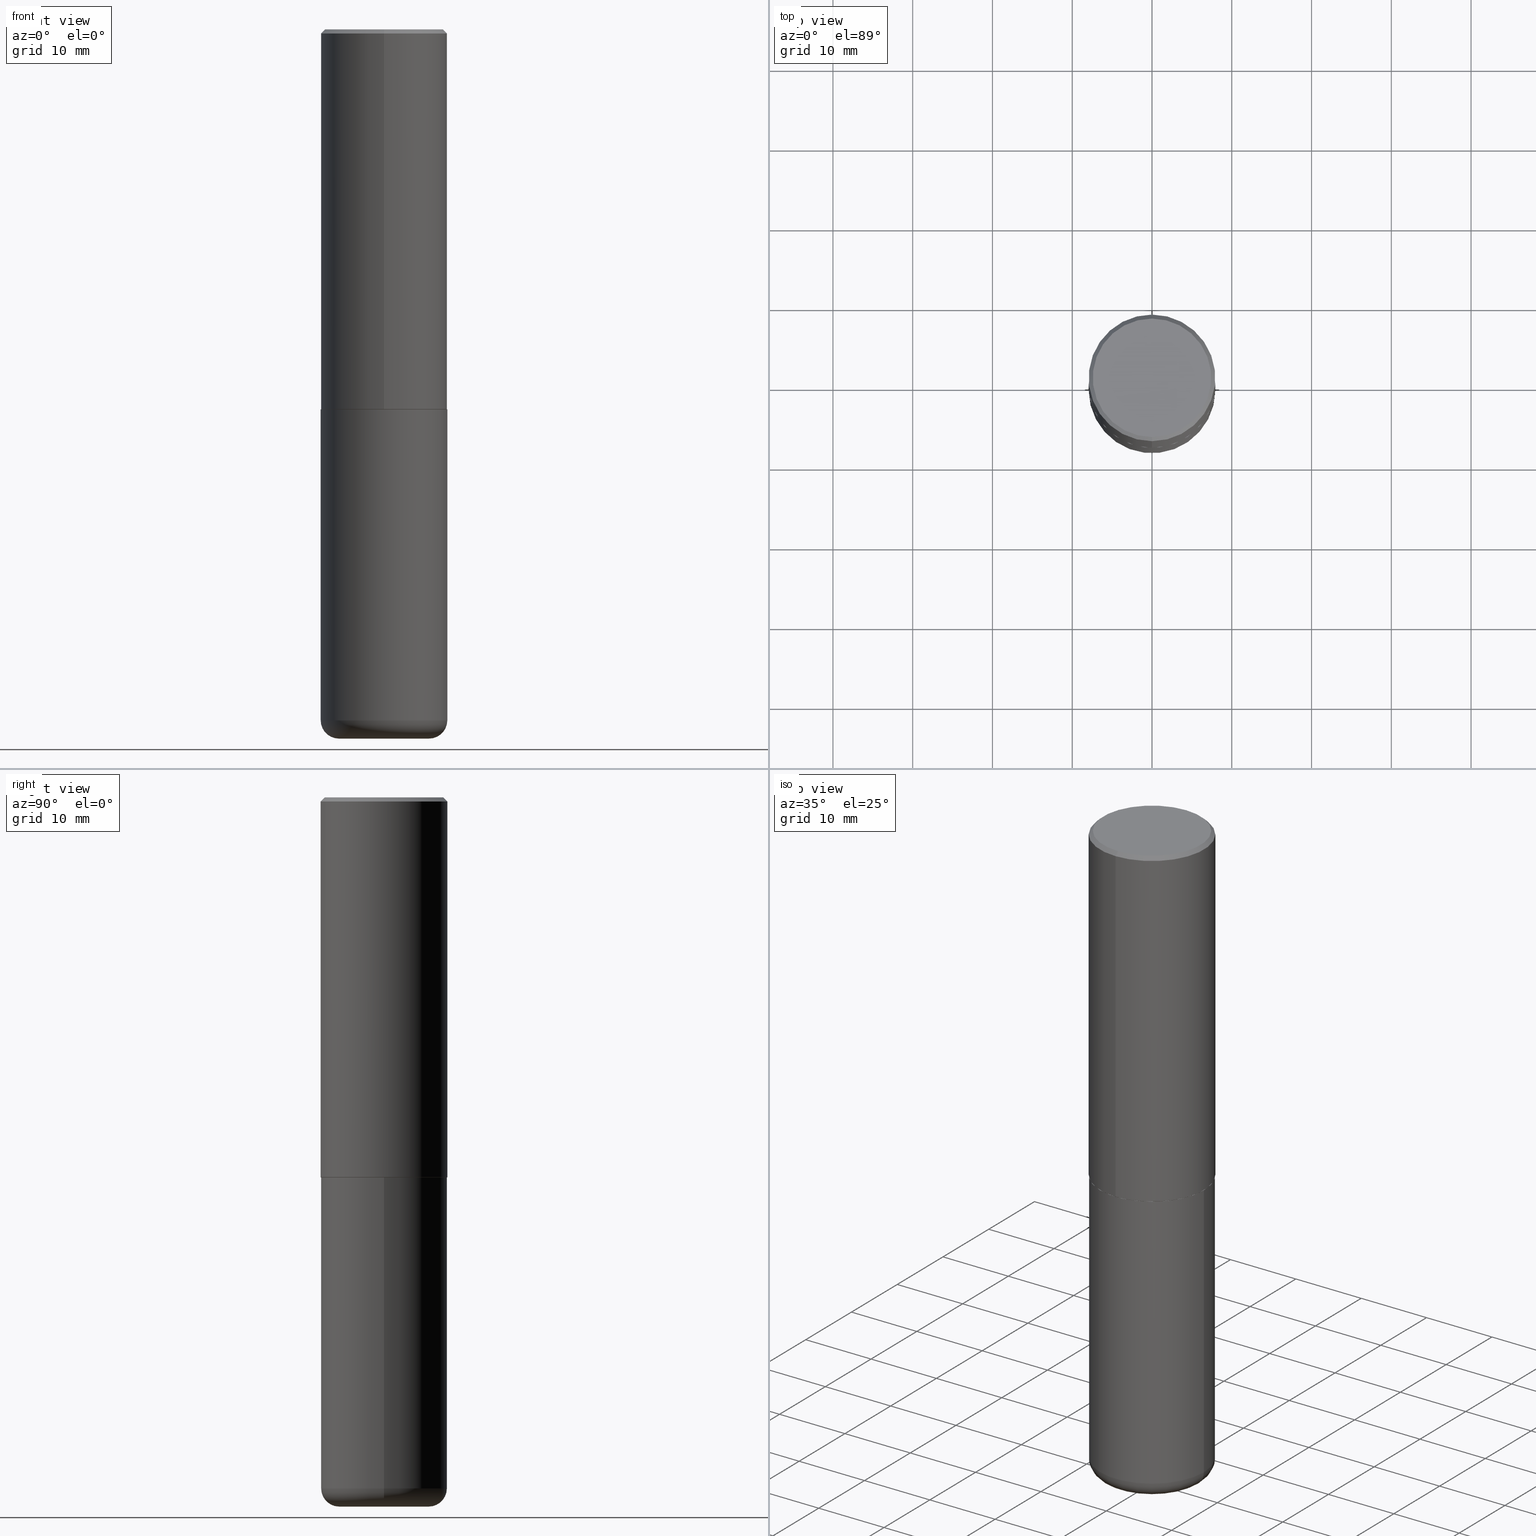
[diagram: canonical four-view strip — front | top / right | iso, engineering-drawing reading convention]
A machine part, canonical four-view strip (front | top / right | iso — engineering-drawing reading convention). The complete STEP part file that produces these views, byte-faithful:
ISO-10303-21;
HEADER;
FILE_DESCRIPTION (( 'STEP AP203' ),
    '1' );
FILE_NAME ('36634.STEP',
    '2024-03-01T17:11:35',
    ( '' ),
    ( '' ),
    'SwSTEP 2.0',
    'SolidWorks 2023',
    '' );
FILE_SCHEMA (( 'CONFIG_CONTROL_DESIGN' ));
ENDSEC;

DATA;
#1 = EDGE_LOOP ( 'NONE', ( #190, #268, #158, #217 ) ) ;
#2 = APPLICATION_PROTOCOL_DEFINITION ( 'international standard', 'config_control_design', 1994, #34 ) ;
#3 = VERTEX_POINT ( 'NONE', #355 ) ;
#4 = CONICAL_SURFACE ( 'NONE', #305, 0.3114999999999999991, 0.7853981633976532262 ) ;
#5 =( GEOMETRIC_REPRESENTATION_CONTEXT ( 3 ) GLOBAL_UNCERTAINTY_ASSIGNED_CONTEXT ( ( #266 ) ) GLOBAL_UNIT_ASSIGNED_CONTEXT ( ( #418, #321, #385 ) ) REPRESENTATION_CONTEXT ( 'NONE', 'WORKASPACE' ) );
#6 = PRODUCT_DEFINITION_SHAPE ( 'NONE', 'NONE',  #299 ) ;
#7 = EDGE_LOOP ( 'NONE', ( #65, #71, #256, #278 ) ) ;
#8 = LINE ( 'NONE', #206, #48 ) ;
#9 = DIRECTION ( 'NONE',  ( -2.445468806185136877E-29, 3.491481338843145188E-15, 1.000000000000000000 ) ) ;
#10 = EDGE_CURVE ( 'NONE', #3, #155, #337, .T. ) ;
#11 = LINE ( 'NONE', #261, #241 ) ;
#12 = LOCAL_TIME ( 12, 11, 35.00000000000000000, #169 ) ;
#13 = CIRCLE ( 'NONE', #248, 0.2225000000000000033 ) ;
#14 = DIRECTION ( 'NONE',  ( -6.982962677686266711E-15, -1.000000000000000000, 3.491481338843145583E-15 ) ) ;
#15 = ADVANCED_FACE ( 'NONE', ( #96 ), #197, .T. ) ;
#16 = CIRCLE ( 'NONE', #63, 0.2924999999999998712 ) ;
#17 = CARTESIAN_POINT ( 'NONE',  ( 4.582734173587975596E-29, -6.543142529923538471E-15, -1.873999999999999666 ) ) ;
#18 = APPROVAL ( #387, 'UNSPECIFIED' ) ;
#19 = DIRECTION ( 'NONE',  ( -2.445429121445024938E-29, 3.491538169649700661E-15, 1.000000000000000000 ) ) ;
#20 = AXIS2_PLACEMENT_3D ( 'NONE', #259, #14, #207 ) ;
#21 = EDGE_LOOP ( 'NONE', ( #380, #243 ) ) ;
#22 = FACE_OUTER_BOUND ( 'NONE', #68, .T. ) ;
#23 = CARTESIAN_POINT ( 'NONE',  ( 4.585179602709420078E-29, -6.546634068093188001E-15, -1.874999999999999556 ) ) ;
#24 = ADVANCED_BREP_SHAPE_REPRESENTATION ( '36634', ( #194, #201, #265 ), #5 ) ;
#25 = DIRECTION ( 'NONE',  ( -6.982962677686265922E-15, -1.000000000000000000, 3.507991003100177457E-15 ) ) ;
#26 = ADVANCED_FACE ( 'NONE', ( #192 ), #282, .F. ) ;
#27 = EDGE_LOOP ( 'NONE', ( #275, #388 ) ) ;
#28 = FACE_OUTER_BOUND ( 'NONE', #386, .T. ) ;
#29 = ORIENTED_EDGE ( 'NONE', *, *, #146, .F. ) ;
#30 = VECTOR ( 'NONE', #170, 39.37007874015748854 ) ;
#31 = CARTESIAN_POINT ( 'NONE',  ( 2.112346210000095443E-15, 0.2924999999999998712, -8.761288669482055095E-16 ) ) ;
#32 = PLANE ( 'NONE',  #417 ) ;
#33 = VERTEX_POINT ( 'NONE', #165 ) ;
#34 = APPLICATION_CONTEXT ( 'configuration controlled 3d designs of mechanical parts and assemblies' ) ;
#35 = ADVANCED_FACE ( 'NONE', ( #289 ), #32, .F. ) ;
#36 = ORIENTED_EDGE ( 'NONE', *, *, #120, .F. ) ;
#37 = DATE_AND_TIME ( #253, #298 ) ;
#38 = EDGE_LOOP ( 'NONE', ( #223, #353 ) ) ;
#39 = LENGTH_MEASURE_WITH_UNIT ( LENGTH_MEASURE( 0.02539999999999999897 ), #415 );
#40 = DIRECTION ( 'NONE',  ( -1.000000000000000000, 6.982962677686265922E-15, -4.876176775795935793E-29 ) ) ;
#41 = DIRECTION ( 'NONE',  ( 1.000000000000000000, -6.982962677686264344E-15, 4.883557194083112340E-29 ) ) ;
#42 = DIRECTION ( 'NONE',  ( -2.445468806185136597E-29, 3.491481338843145583E-15, 1.000000000000000000 ) ) ;
#43 = ADVANCED_FACE ( 'NONE', ( #141 ), #107, .T. ) ;
#44 = FACE_OUTER_BOUND ( 'NONE', #1, .T. ) ;
#45 = DIRECTION ( 'NONE',  ( 4.937700262164541731E-15, 0.7071067811865442421, -0.7071067811865507924 ) ) ;
#46 = AXIS2_PLACEMENT_3D ( 'NONE', #211, #91, #25 ) ;
#47 = CIRCLE ( 'NONE', #335, 0.2924999999999998712 ) ;
#48 = VECTOR ( 'NONE', #9, 39.37007874015748143 ) ;
#49 = LINE ( 'NONE', #167, #171 ) ;
#50 = LINE ( 'NONE', #177, #55 ) ;
#51 = EDGE_CURVE ( 'NONE', #395, #324, #13, .T. ) ;
#52 = DIRECTION ( 'NONE',  ( -2.445468806185136597E-29, 3.491481338843145583E-15, 1.000000000000000000 ) ) ;
#53 = TOROIDAL_SURFACE ( 'NONE', #318, 0.2225000000000000033, 0.09000000000000020484 ) ;
#54 = CARTESIAN_POINT ( 'NONE',  ( 4.582734173587975596E-29, -6.543142529923538471E-15, -1.873999999999999666 ) ) ;
#55 = VECTOR ( 'NONE', #343, 39.37007874015748143 ) ;
#56 = DIRECTION ( 'NONE',  ( 6.982962677686265133E-15, 1.000000000000000000, -3.496765431890256920E-15 ) ) ;
#57 = VERTEX_POINT ( 'NONE', #168 ) ;
#58 = FACE_OUTER_BOUND ( 'NONE', #125, .T. ) ;
#59 = VERTEX_POINT ( 'NONE', #367 ) ;
#60 = CC_DESIGN_SECURITY_CLASSIFICATION ( #348, ( #143 ) ) ;
#61 = ORIENTED_EDGE ( 'NONE', *, *, #195, .T. ) ;
#62 = AXIS2_PLACEMENT_3D ( 'NONE', #233, #300, #235 ) ;
#63 = AXIS2_PLACEMENT_3D ( 'NONE', #307, #244, #147 ) ;
#64 = PRODUCT ( '36634', '36634', '', ( #251 ) ) ;
#65 = ORIENTED_EDGE ( 'NONE', *, *, #389, .F. ) ;
#66 = DIRECTION ( 'NONE',  ( -2.445429121445024938E-29, 3.491538169649700661E-15, 1.000000000000000000 ) ) ;
#67 = AXIS2_PLACEMENT_3D ( 'NONE', #69, #95, #226 ) ;
#68 = EDGE_LOOP ( 'NONE', ( #116, #384, #144, #178 ) ) ;
#69 = CARTESIAN_POINT ( 'NONE',  ( 4.585254011597130558E-29, -6.546527510330897918E-15, -1.874999999999999778 ) ) ;
#70 = ADVANCED_FACE ( 'NONE', ( #76 ), #359, .T. ) ;
#71 = ORIENTED_EDGE ( 'NONE', *, *, #350, .T. ) ;
#72 = AXIS2_PLACEMENT_3D ( 'NONE', #249, #242, #56 ) ;
#73 = DATE_TIME_ROLE ( 'classification_date' ) ;
#74 = DIRECTION ( 'NONE',  ( -6.982962677686265133E-15, -1.000000000000000000, 3.491538169649700267E-15 ) ) ;
#75 = DIRECTION ( 'NONE',  ( -2.445468806185136597E-29, 3.491481338843145583E-15, 1.000000000000000000 ) ) ;
#76 = FACE_OUTER_BOUND ( 'NONE', #373, .T. ) ;
#77 = EDGE_CURVE ( 'NONE', #185, #33, #8, .T. ) ;
#78 = CARTESIAN_POINT ( 'NONE',  ( 4.585254011597130558E-29, -6.546527510330897918E-15, -1.874999999999999778 ) ) ;
#79 = AXIS2_PLACEMENT_3D ( 'NONE', #181, #52, #409 ) ;
#80 = CARTESIAN_POINT ( 'NONE',  ( 4.585179602709420078E-29, -6.546634068093188001E-15, -1.874999999999999556 ) ) ;
#81 = CC_DESIGN_APPROVAL ( #407, ( #348 ) ) ;
#82 = AXIS2_PLACEMENT_3D ( 'NONE', #330, #264, #137 ) ;
#83 = DIRECTION ( 'NONE',  ( -2.445429121445024938E-29, 3.491538169649700661E-15, 1.000000000000000000 ) ) ;
#84 = CARTESIAN_POINT ( 'NONE',  ( 2.220446049250337141E-15, 0.3124999999999936717, -1.874000000000000776 ) ) ;
#85 = VERTEX_POINT ( 'NONE', #110 ) ;
#86 = CIRCLE ( 'NONE', #46, 0.3114999999999999991 ) ;
#87 = CARTESIAN_POINT ( 'NONE',  ( -2.175192874099225790E-15, -0.3115000000000065494, -1.874999999999998446 ) ) ;
#88 = VECTOR ( 'NONE', #383, 39.37007874015748854 ) ;
#89 = DIRECTION ( 'NONE',  ( -2.445429121445024938E-29, 3.491538169649700267E-15, 1.000000000000000000 ) ) ;
#90 = ADVANCED_FACE ( 'NONE', ( #44 ), #260, .T. ) ;
#91 = DIRECTION ( 'NONE',  ( -2.445429121445024938E-29, 3.491538169649700661E-15, 1.000000000000000000 ) ) ;
#92 = PRODUCT_RELATED_PRODUCT_CATEGORY ( 'detail', '', ( #64 ) ) ;
#93 = LOCAL_TIME ( 12, 11, 35.00000000000000000, #159 ) ;
#94 = DIRECTION ( 'NONE',  ( -6.982962677686265133E-15, -1.000000000000000000, 3.496765431890256920E-15 ) ) ;
#95 = DIRECTION ( 'NONE',  ( -2.445468806185136597E-29, 3.491481338843145583E-15, 1.000000000000000000 ) ) ;
#96 = FACE_OUTER_BOUND ( 'NONE', #326, .T. ) ;
#97 = CARTESIAN_POINT ( 'NONE',  ( 2.213340621892757432E-15, 0.3114999999999934488, -1.875000000000000666 ) ) ;
#98 = DIRECTION ( 'NONE',  ( -2.445429121445024938E-29, 3.491538169649700661E-15, 1.000000000000000000 ) ) ;
#99 = ADVANCED_FACE ( 'NONE', ( #297 ), #403, .T. ) ;
#100 = APPROVAL_ROLE ( '' ) ;
#101 = ORIENTED_EDGE ( 'NONE', *, *, #369, .F. ) ;
#102 = AXIS2_PLACEMENT_3D ( 'NONE', #133, #75, #293 ) ;
#103 = AXIS2_PLACEMENT_3D ( 'NONE', #78, #363, #370 ) ;
#104 = DATE_AND_TIME ( #398, #12 ) ;
#105 = ORIENTED_EDGE ( 'NONE', *, *, #51, .F. ) ;
#106 = SHAPE_DEFINITION_REPRESENTATION ( #6, #24 ) ;
#107 = CYLINDRICAL_SURFACE ( 'NONE', #82, 0.3125000000000000000 ) ;
#108 = APPROVAL_PERSON_ORGANIZATION ( #354, #232, #100 ) ;
#109 = DIRECTION ( 'NONE',  ( -2.445468806185136597E-29, 3.491481338843145583E-15, 1.000000000000000000 ) ) ;
#110 = CARTESIAN_POINT ( 'NONE',  ( -2.182175836776913776E-15, -0.3125000000000067724, -1.873999999999998556 ) ) ;
#111 = CC_DESIGN_DATE_AND_TIME_ASSIGNMENT ( #104, #73, ( #348 ) ) ;
#112 = CARTESIAN_POINT ( 'NONE',  ( 2.182175836776958741E-15, 0.3124999999999999445, -0.02000000000000116268 ) ) ;
#113 = DIRECTION ( 'NONE',  ( 6.982962677686265133E-15, 1.000000000000000000, -3.496765431890256920E-15 ) ) ;
#114 = EDGE_CURVE ( 'NONE', #198, #85, #234, .T. ) ;
#115 = CARTESIAN_POINT ( 'NONE',  ( 8.339048629091315302E-29, -1.190595136545512608E-14, -3.410000000000000142 ) ) ;
#116 = ORIENTED_EDGE ( 'NONE', *, *, #230, .F. ) ;
#117 = DIRECTION ( 'NONE',  ( 1.000000000000000000, -6.982962677686264344E-15, 4.883557194083112340E-29 ) ) ;
#118 = DIRECTION ( 'NONE',  ( -4.851104656540957964E-15, -0.7071067811865491270, -0.7071067811865459074 ) ) ;
#119 = LOCAL_TIME ( 12, 11, 35.00000000000000000, #291 ) ;
#120 = EDGE_CURVE ( 'NONE', #393, #155, #11, .T. ) ;
#121 = DIRECTION ( 'NONE',  ( 7.105427357601001859E-15, 1.000000000000000000, -3.491481338843145583E-15 ) ) ;
#122 = CLOSED_SHELL ( 'NONE', ( #43, #70, #26, #90, #288, #129 ) ) ;
#123 = APPROVAL_STATUS ( 'not_yet_approved' ) ;
#124 = ORIENTED_EDGE ( 'NONE', *, *, #140, .F. ) ;
#125 = EDGE_LOOP ( 'NONE', ( #132, #214, #361, #345 ) ) ;
#126 = CARTESIAN_POINT ( 'NONE',  ( 4.890858242890066482E-31, -6.983076339299424594E-17, -0.02000000000000006981 ) ) ;
#127 = SECURITY_CLASSIFICATION_LEVEL ( 'unclassified' ) ;
#128 = VERTEX_POINT ( 'NONE', #333 ) ;
#129 = ADVANCED_FACE ( 'NONE', ( #202 ), #401, .T. ) ;
#130 = CIRCLE ( 'NONE', #193, 0.3125000000000000000 ) ;
#131 = CIRCLE ( 'NONE', #67, 0.3125000000000000000 ) ;
#132 = ORIENTED_EDGE ( 'NONE', *, *, #276, .F. ) ;
#133 = CARTESIAN_POINT ( 'NONE',  ( 0.000000000000000000, 0.000000000000000000, 0.000000000000000000 ) ) ;
#134 = DIRECTION ( 'NONE',  ( 6.982962677686265922E-15, 1.000000000000000000, -3.491538169649700267E-15 ) ) ;
#135 = ORGANIZATION ( 'UNSPECIFIED', 'UNSPECIFIED', '' ) ;
#136 = AXIS2_PLACEMENT_3D ( 'NONE', #405, #339, #376 ) ;
#137 = DIRECTION ( 'NONE',  ( 1.000000000000000000, -6.982962677686266711E-15, 4.876176775795936353E-29 ) ) ;
#138 = CARTESIAN_POINT ( 'NONE',  ( 8.339048629091315302E-29, -1.190595136545512608E-14, -3.410000000000000142 ) ) ;
#139 = CONICAL_SURFACE ( 'NONE', #72, 0.3125000000000000000, 0.7853981633974471688 ) ;
#140 = EDGE_CURVE ( 'NONE', #33, #59, #292, .T. ) ;
#141 = FACE_OUTER_BOUND ( 'NONE', #150, .T. ) ;
#142 = CARTESIAN_POINT ( 'NONE',  ( 4.585179602709420078E-29, -6.546634068093188001E-15, -1.874999999999999556 ) ) ;
#143 = PRODUCT_DEFINITION_FORMATION_WITH_SPECIFIED_SOURCE ( 'ANY', '', #64, .NOT_KNOWN. ) ;
#144 = ORIENTED_EDGE ( 'NONE', *, *, #146, .T. ) ;
#145 = FACE_OUTER_BOUND ( 'NONE', #21, .T. ) ;
#146 = EDGE_CURVE ( 'NONE', #324, #185, #338, .T. ) ;
#147 = DIRECTION ( 'NONE',  ( -6.982962677686265133E-15, -1.000000000000000000, 3.491538169649699873E-15 ) ) ;
#148 = CYLINDRICAL_SURFACE ( 'NONE', #166, 0.3125000000000001665 ) ;
#149 = CC_DESIGN_PERSON_AND_ORGANIZATION_ASSIGNMENT ( #279, #413, ( #299 ) ) ;
#150 = EDGE_LOOP ( 'NONE', ( #316, #284, #124, #182 ) ) ;
#151 = EDGE_CURVE ( 'NONE', #128, #185, #130, .T. ) ;
#152 = DIRECTION ( 'NONE',  ( -2.445429121445024938E-29, 3.491538169649700661E-15, 1.000000000000000000 ) ) ;
#153 = ORIENTED_EDGE ( 'NONE', *, *, #311, .F. ) ;
#154 = APPROVAL_DATE_TIME ( #191, #232 ) ;
#155 = VERTEX_POINT ( 'NONE', #112 ) ;
#156 = CC_DESIGN_PERSON_AND_ORGANIZATION_ASSIGNMENT ( #327, #411, ( #143 ) ) ;
#157 = COORDINATED_UNIVERSAL_TIME_OFFSET ( 5, 0, .BEHIND. ) ;
#158 = ORIENTED_EDGE ( 'NONE', *, *, #77, .T. ) ;
#159 = COORDINATED_UNIVERSAL_TIME_OFFSET ( 5, 0, .BEHIND. ) ;
#160 = EDGE_LOOP ( 'NONE', ( #61, #252, #188, #410 ) ) ;
#161 = APPROVAL_DATE_TIME ( #37, #18 ) ;
#162 = ADVANCED_FACE ( 'NONE', ( #237 ), #4, .T. ) ;
#163 = ORIENTED_EDGE ( 'NONE', *, *, #236, .T. ) ;
#164 = PERSON_AND_ORGANIZATION_ROLE ( 'design_owner' ) ;
#165 = CARTESIAN_POINT ( 'NONE',  ( 0.3125000000000000000, -8.728703347107855476E-15, -1.874999999999999778 ) ) ;
#166 = AXIS2_PLACEMENT_3D ( 'NONE', #213, #310, #371 ) ;
#167 = CARTESIAN_POINT ( 'NONE',  ( 2.220446049250313475E-15, 0.3125000000000001665, -1.091105678015531925E-15 ) ) ;
#168 = CARTESIAN_POINT ( 'NONE',  ( 2.216893335571558331E-15, 0.3114999999999934488, -1.875000000000000666 ) ) ;
#169 = COORDINATED_UNIVERSAL_TIME_OFFSET ( 5, 0, .BEHIND. ) ;
#170 = DIRECTION ( 'NONE',  ( -4.937700262165559362E-15, -0.7071067811866899033, 0.7071067811864050201 ) ) ;
#171 = VECTOR ( 'NONE', #175, 39.37007874015748143 ) ;
#172 = PERSON_AND_ORGANIZATION ( #309, #135 ) ;
#173 = EDGE_CURVE ( 'NONE', #255, #155, #49, .T. ) ;
#174 = AXIS2_PLACEMENT_3D ( 'NONE', #294, #109, #41 ) ;
#175 = DIRECTION ( 'NONE',  ( -2.445429121445024938E-29, 3.491538169649700267E-15, 1.000000000000000000 ) ) ;
#176 = APPLICATION_CONTEXT ( 'configuration controlled 3d designs of mechanical parts and assemblies' ) ;
#177 = CARTESIAN_POINT ( 'NONE',  ( -2.182175836776959136E-15, -0.3125000000000001665, 1.091105678015531925E-15 ) ) ;
#178 = ORIENTED_EDGE ( 'NONE', *, *, #151, .F. ) ;
#179 = DIRECTION ( 'NONE',  ( -6.982962677686265922E-15, -1.000000000000000000, 3.507991003100177457E-15 ) ) ;
#180 = CC_DESIGN_PERSON_AND_ORGANIZATION_ASSIGNMENT ( #219, #349, ( #348 ) ) ;
#181 = CARTESIAN_POINT ( 'NONE',  ( 8.339048629091315302E-29, -1.190595136545512608E-14, -3.410000000000000142 ) ) ;
#182 = ORIENTED_EDGE ( 'NONE', *, *, #77, .F. ) ;
#183 = CARTESIAN_POINT ( 'NONE',  ( 4.890858242890066482E-31, -6.983076339299424594E-17, -0.02000000000000006981 ) ) ;
#184 = AXIS2_PLACEMENT_3D ( 'NONE', #23, #89, #277 ) ;
#185 = VERTEX_POINT ( 'NONE', #397 ) ;
#186 = VECTOR ( 'NONE', #118, 39.37007874015748143 ) ;
#187 = DIRECTION ( 'NONE',  ( 0.000000000000000000, 0.000000000000000000, 1.000000000000000000 ) ) ;
#188 = ORIENTED_EDGE ( 'NONE', *, *, #10, .F. ) ;
#189 = APPLICATION_PROTOCOL_DEFINITION ( 'international standard', 'config_control_design', 1994, #176 ) ;
#190 = ORIENTED_EDGE ( 'NONE', *, *, #375, .F. ) ;
#191 = DATE_AND_TIME ( #382, #238 ) ;
#192 = FACE_OUTER_BOUND ( 'NONE', #38, .T. ) ;
#193 = AXIS2_PLACEMENT_3D ( 'NONE', #138, #263, #402 ) ;
#194 = MANIFOLD_SOLID_BREP ( 'Body-Move/Copy2[1]', #122 ) ;
#195 = EDGE_CURVE ( 'NONE', #85, #255, #390, .T. ) ;
#196 = DATE_TIME_ROLE ( 'creation_date' ) ;
#197 = CONICAL_SURFACE ( 'NONE', #366, 0.3114999999999999991, 0.7853981633976532262 ) ;
#198 = VERTEX_POINT ( 'NONE', #87 ) ;
#199 = PERSON_AND_ORGANIZATION ( #309, #135 ) ;
#200 = CARTESIAN_POINT ( 'NONE',  ( 4.585179602709420078E-29, -6.546634068093188001E-15, -1.874999999999999556 ) ) ;
#201 = MANIFOLD_SOLID_BREP ( 'Body-Move/Copy2[2]', #394 ) ;
#202 = FACE_OUTER_BOUND ( 'NONE', #254, .T. ) ;
#203 = APPROVAL_PERSON_ORGANIZATION ( #172, #407, #204 ) ;
#204 = APPROVAL_ROLE ( '' ) ;
#205 = CARTESIAN_POINT ( 'NONE',  ( 8.559140821647978089E-29, -1.222018468595101092E-14, -3.500000000000000444 ) ) ;
#206 = CARTESIAN_POINT ( 'NONE',  ( 0.3125000000000000000, -2.182175836776958347E-15, 1.523805242436230075E-29 ) ) ;
#207 = DIRECTION ( 'NONE',  ( 1.000000000000000000, -6.982962677686273021E-15, 0.000000000000000000 ) ) ;
#208 = AXIS2_PLACEMENT_3D ( 'NONE', #406, #216, #215 ) ;
#209 = EDGE_CURVE ( 'NONE', #185, #128, #271, .T. ) ;
#210 = DIRECTION ( 'NONE',  ( -2.445429121445024938E-29, 3.491538169649700661E-15, 1.000000000000000000 ) ) ;
#211 = CARTESIAN_POINT ( 'NONE',  ( 4.585179602709420078E-29, -6.546634068093188001E-15, -1.874999999999999556 ) ) ;
#212 = LINE ( 'NONE', #270, #186 ) ;
#213 = CARTESIAN_POINT ( 'NONE',  ( 0.000000000000000000, 0.000000000000000000, 0.000000000000000000 ) ) ;
#214 = ORIENTED_EDGE ( 'NONE', *, *, #239, .F. ) ;
#215 = DIRECTION ( 'NONE',  ( -6.982962677686265133E-15, -1.000000000000000000, 3.496765431890256920E-15 ) ) ;
#216 = DIRECTION ( 'NONE',  ( -2.445429121445024938E-29, 3.491538169649700661E-15, 1.000000000000000000 ) ) ;
#217 = ORIENTED_EDGE ( 'NONE', *, *, #396, .F. ) ;
#218 = CIRCLE ( 'NONE', #306, 0.3114999999999999991 ) ;
#219 = PERSON_AND_ORGANIZATION ( #309, #135 ) ;
#220 = CIRCLE ( 'NONE', #208, 0.3125000000000000000 ) ;
#221 = CARTESIAN_POINT ( 'NONE',  ( 0.000000000000000000, 0.000000000000000000, 0.000000000000000000 ) ) ;
#222 = ORIENTED_EDGE ( 'NONE', *, *, #173, .F. ) ;
#223 = ORIENTED_EDGE ( 'NONE', *, *, #140, .T. ) ;
#224 = DIMENSIONAL_EXPONENTS ( 1.000000000000000000, 0.000000000000000000, 0.000000000000000000, 0.000000000000000000, 0.000000000000000000, 0.000000000000000000, 0.000000000000000000 ) ;
#225 = ADVANCED_FACE ( 'NONE', ( #303 ), #148, .T. ) ;
#226 = DIRECTION ( 'NONE',  ( 1.000000000000000000, -6.982962677686265133E-15, 0.000000000000000000 ) ) ;
#227 = CARTESIAN_POINT ( 'NONE',  ( 4.585254011597130558E-29, -6.546527510330897918E-15, -1.874999999999999778 ) ) ;
#228 = ORIENTED_EDGE ( 'NONE', *, *, #320, .T. ) ;
#229 = APPROVAL_DATE_TIME ( #258, #407 ) ;
#230 = EDGE_CURVE ( 'NONE', #395, #128, #347, .T. ) ;
#231 = DIRECTION ( 'NONE',  ( -2.445429121445024938E-29, 3.491538169649700661E-15, 1.000000000000000000 ) ) ;
#232 = APPROVAL ( #123, 'UNSPECIFIED' ) ;
#233 = CARTESIAN_POINT ( 'NONE',  ( 2.557579110812578813E-29, -2.081476264354644977E-14, -3.500000000000000444 ) ) ;
#234 = LINE ( 'NONE', #332, #30 ) ;
#235 = DIRECTION ( 'NONE',  ( -1.000000000000000000, 6.982962677686265922E-15, -4.876176775795935793E-29 ) ) ;
#236 = EDGE_CURVE ( 'NONE', #324, #395, #274, .T. ) ;
#237 = FACE_OUTER_BOUND ( 'NONE', #7, .T. ) ;
#238 = LOCAL_TIME ( 12, 11, 35.00000000000000000, #157 ) ;
#239 = EDGE_CURVE ( 'NONE', #393, #304, #47, .T. ) ;
#240 = LINE ( 'NONE', #97, #88 ) ;
#241 = VECTOR ( 'NONE', #45, 39.37007874015748143 ) ;
#242 = DIRECTION ( 'NONE',  ( 2.445429121445024938E-29, -3.491538169649700661E-15, -1.000000000000000000 ) ) ;
#243 = ORIENTED_EDGE ( 'NONE', *, *, #350, .F. ) ;
#244 = DIRECTION ( 'NONE',  ( -2.445429121445024938E-29, 3.491538169649700661E-15, 1.000000000000000000 ) ) ;
#245 = CC_DESIGN_PERSON_AND_ORGANIZATION_ASSIGNMENT ( #285, #391, ( #143 ) ) ;
#246 = CC_DESIGN_APPROVAL ( #18, ( #143 ) ) ;
#247 = CARTESIAN_POINT ( 'NONE',  ( -0.2225000000000000033, -1.032499377838890215E-14, -3.410000000000000142 ) ) ;
#248 = AXIS2_PLACEMENT_3D ( 'NONE', #205, #42, #329 ) ;
#249 = CARTESIAN_POINT ( 'NONE',  ( 4.890858242890066482E-31, -6.983076339299424594E-17, -0.02000000000000006981 ) ) ;
#250 = CALENDAR_DATE ( 2024, 1, 3 ) ;
#251 = MECHANICAL_CONTEXT ( 'NONE', #176, 'mechanical' ) ;
#252 = ORIENTED_EDGE ( 'NONE', *, *, #173, .T. ) ;
#253 = CALENDAR_DATE ( 2024, 1, 3 ) ;
#254 = EDGE_LOOP ( 'NONE', ( #319, #105 ) ) ;
#255 = VERTEX_POINT ( 'NONE', #84 ) ;
#256 = ORIENTED_EDGE ( 'NONE', *, *, #114, .T. ) ;
#257 = ORIENTED_EDGE ( 'NONE', *, *, #331, .T. ) ;
#258 = DATE_AND_TIME ( #365, #119 ) ;
#259 = CARTESIAN_POINT ( 'NONE',  ( 0.2225000000000000033, -1.345966056124032105E-14, -3.410000000000000142 ) ) ;
#260 = CYLINDRICAL_SURFACE ( 'NONE', #102, 0.3125000000000000000 ) ;
#261 = CARTESIAN_POINT ( 'NONE',  ( 2.182175836776958741E-15, 0.3124999999999999445, -0.02000000000000116268 ) ) ;
#262 = DESIGN_CONTEXT ( 'detailed design', #34, 'design' ) ;
#263 = DIRECTION ( 'NONE',  ( -2.445468806185136597E-29, 3.491481338843145583E-15, 1.000000000000000000 ) ) ;
#264 = DIRECTION ( 'NONE',  ( -2.445468806185136597E-29, 3.491481338843145583E-15, 1.000000000000000000 ) ) ;
#265 = AXIS2_PLACEMENT_3D ( 'NONE', #221, #187, #356 ) ;
#266 = UNCERTAINTY_MEASURE_WITH_UNIT (LENGTH_MEASURE( 1.000000000000000082E-05 ), #418, 'distance_accuracy_value', 'NONE');
#267 = CARTESIAN_POINT ( 'NONE',  ( -3.549443718454578199E-45, 5.067829656287230541E-31, 1.451460476743313561E-16 ) ) ;
#268 = ORIENTED_EDGE ( 'NONE', *, *, #151, .T. ) ;
#269 = PLANE ( 'NONE',  #184 ) ;
#270 = CARTESIAN_POINT ( 'NONE',  ( -2.143905624303602824E-15, -0.3125000000000000555, -0.01999999999999897693 ) ) ;
#271 = CIRCLE ( 'NONE', #79, 0.3125000000000000000 ) ;
#272 = CC_DESIGN_APPROVAL ( #232, ( #299 ) ) ;
#273 = CARTESIAN_POINT ( 'NONE',  ( -0.3125000000000000000, 2.220446049250313081E-15, -1.537167215704658232E-29 ) ) ;
#274 = CIRCLE ( 'NONE', #136, 0.2225000000000000033 ) ;
#275 = ORIENTED_EDGE ( 'NONE', *, *, #239, .T. ) ;
#276 = EDGE_CURVE ( 'NONE', #304, #3, #212, .T. ) ;
#277 = DIRECTION ( 'NONE',  ( -6.982962677686265922E-15, -1.000000000000000000, 3.491538169649700267E-15 ) ) ;
#278 = ORIENTED_EDGE ( 'NONE', *, *, #320, .F. ) ;
#279 = PERSON_AND_ORGANIZATION ( #309, #135 ) ;
#280 = CARTESIAN_POINT ( 'NONE',  ( 2.042516583223231751E-15, 0.2924999999999998712, -9.487018907853712492E-16 ) ) ;
#281 = DATE_AND_TIME ( #250, #93 ) ;
#282 = PLANE ( 'NONE',  #378 ) ;
#283 = PERSON_AND_ORGANIZATION ( #309, #135 ) ;
#284 = ORIENTED_EDGE ( 'NONE', *, *, #375, .T. ) ;
#285 = PERSON_AND_ORGANIZATION ( #309, #135 ) ;
#286 = CIRCLE ( 'NONE', #340, 0.3125000000000002220 ) ;
#287 = ORIENTED_EDGE ( 'NONE', *, *, #114, .F. ) ;
#288 = ADVANCED_FACE ( 'NONE', ( #22 ), #53, .T. ) ;
#289 = FACE_OUTER_BOUND ( 'NONE', #27, .T. ) ;
#290 = AXIS2_PLACEMENT_3D ( 'NONE', #247, #121, #341 ) ;
#291 = COORDINATED_UNIVERSAL_TIME_OFFSET ( 5, 0, .BEHIND. ) ;
#292 = CIRCLE ( 'NONE', #103, 0.3125000000000000000 ) ;
#293 = DIRECTION ( 'NONE',  ( 1.000000000000000000, -6.982962677686266711E-15, 4.876176775795936353E-29 ) ) ;
#294 = CARTESIAN_POINT ( 'NONE',  ( 8.339048629091315302E-29, -1.190595136545512608E-14, -3.410000000000000142 ) ) ;
#295 = APPROVAL_STATUS ( 'not_yet_approved' ) ;
#296 = ADVANCED_FACE ( 'NONE', ( #28 ), #139, .T. ) ;
#297 = FACE_OUTER_BOUND ( 'NONE', #308, .T. ) ;
#298 = LOCAL_TIME ( 12, 11, 35.00000000000000000, #325 ) ;
#299 = PRODUCT_DEFINITION ( 'UNKNOWN', '', #143, #262 ) ;
#300 = DIRECTION ( 'NONE',  ( 2.438088387897960049E-29, -3.491481338843145188E-15, -1.000000000000000000 ) ) ;
#301 = DIRECTION ( 'NONE',  ( 2.445429121445024938E-29, -3.491538169649700267E-15, -1.000000000000000000 ) ) ;
#302 = EDGE_CURVE ( 'NONE', #85, #3, #50, .T. ) ;
#303 = FACE_OUTER_BOUND ( 'NONE', #160, .T. ) ;
#304 = VERTEX_POINT ( 'NONE', #372 ) ;
#305 = AXIS2_PLACEMENT_3D ( 'NONE', #80, #210, #336 ) ;
#306 = AXIS2_PLACEMENT_3D ( 'NONE', #142, #83, #179 ) ;
#307 = CARTESIAN_POINT ( 'NONE',  ( -3.549443718454578199E-45, 5.067829656287230541E-31, 1.451460476743313561E-16 ) ) ;
#308 = EDGE_LOOP ( 'NONE', ( #222, #228, #416, #101 ) ) ;
#309 = PERSON ( 'UNSPECIFIED', 'UNSPECIFIED', 'UNSPECIFIED', ('UNSPECIFIED'), ('UNSPECIFIED'), ('UNSPECIFIED') ) ;
#310 = DIRECTION ( 'NONE',  ( -2.445429121445024938E-29, 3.491538169649700661E-15, 1.000000000000000000 ) ) ;
#311 = EDGE_CURVE ( 'NONE', #304, #393, #16, .T. ) ;
#312 = DIRECTION ( 'NONE',  ( -2.445468806185136597E-29, 3.491481338843145583E-15, 1.000000000000000000 ) ) ;
#313 = ORIENTED_EDGE ( 'NONE', *, *, #230, .T. ) ;
#314 = DIRECTION ( 'NONE',  ( 2.445429121445024938E-29, -3.491538169649700661E-15, -1.000000000000000000 ) ) ;
#315 = CC_DESIGN_DATE_AND_TIME_ASSIGNMENT ( #281, #196, ( #299 ) ) ;
#316 = ORIENTED_EDGE ( 'NONE', *, *, #209, .T. ) ;
#317 = AXIS2_PLACEMENT_3D ( 'NONE', #399, #368, #74 ) ;
#318 = AXIS2_PLACEMENT_3D ( 'NONE', #115, #312, #117 ) ;
#319 = ORIENTED_EDGE ( 'NONE', *, *, #236, .F. ) ;
#320 = EDGE_CURVE ( 'NONE', #255, #85, #286, .T. ) ;
#321 =( NAMED_UNIT ( * ) PLANE_ANGLE_UNIT ( ) SI_UNIT ( $, .RADIAN. ) );
#322 = ORIENTED_EDGE ( 'NONE', *, *, #389, .T. ) ;
#323 = CC_DESIGN_PERSON_AND_ORGANIZATION_ASSIGNMENT ( #199, #164, ( #64 ) ) ;
#324 = VERTEX_POINT ( 'NONE', #374 ) ;
#325 = COORDINATED_UNIVERSAL_TIME_OFFSET ( 5, 0, .BEHIND. ) ;
#326 = EDGE_LOOP ( 'NONE', ( #257, #322, #414, #287 ) ) ;
#327 = PERSON_AND_ORGANIZATION ( #309, #135 ) ;
#328 = DIRECTION ( 'NONE',  ( -6.982962677686265922E-15, -1.000000000000000000, 3.507991003100177457E-15 ) ) ;
#329 = DIRECTION ( 'NONE',  ( 1.000000000000000000, -6.982962677686269077E-15, 0.000000000000000000 ) ) ;
#330 = CARTESIAN_POINT ( 'NONE',  ( 0.000000000000000000, 0.000000000000000000, 0.000000000000000000 ) ) ;
#331 = EDGE_CURVE ( 'NONE', #198, #57, #218, .T. ) ;
#332 = CARTESIAN_POINT ( 'NONE',  ( -2.175192874099225790E-15, -0.3115000000000065494, -1.874999999999998446 ) ) ;
#333 = CARTESIAN_POINT ( 'NONE',  ( -0.3125000000000001665, -9.685505316204812997E-15, -3.410000000000000142 ) ) ;
#334 = APPROVAL_PERSON_ORGANIZATION ( #283, #18, #360 ) ;
#335 = AXIS2_PLACEMENT_3D ( 'NONE', #267, #19, #404 ) ;
#336 = DIRECTION ( 'NONE',  ( -6.982962677686265922E-15, -1.000000000000000000, 3.507991003100177457E-15 ) ) ;
#337 = CIRCLE ( 'NONE', #400, 0.3125000000000000000 ) ;
#338 = CIRCLE ( 'NONE', #20, 0.09000000000000020484 ) ;
#339 = DIRECTION ( 'NONE',  ( -2.445468806185136597E-29, 3.491481338843145583E-15, 1.000000000000000000 ) ) ;
#340 = AXIS2_PLACEMENT_3D ( 'NONE', #54, #152, #379 ) ;
#341 = DIRECTION ( 'NONE',  ( -1.000000000000000000, 7.105427357600996337E-15, 0.000000000000000000 ) ) ;
#342 = VECTOR ( 'NONE', #346, 39.37007874015748143 ) ;
#343 = DIRECTION ( 'NONE',  ( -2.445429121445024938E-29, 3.491538169649700267E-15, 1.000000000000000000 ) ) ;
#344 = LINE ( 'NONE', #273, #342 ) ;
#345 = ORIENTED_EDGE ( 'NONE', *, *, #369, .T. ) ;
#346 = DIRECTION ( 'NONE',  ( -2.445468806185136877E-29, 3.491481338843145188E-15, 1.000000000000000000 ) ) ;
#347 = CIRCLE ( 'NONE', #290, 0.09000000000000020484 ) ;
#348 = SECURITY_CLASSIFICATION ( '', '', #127 ) ;
#349 = PERSON_AND_ORGANIZATION_ROLE ( 'classification_officer' ) ;
#350 = EDGE_CURVE ( 'NONE', #57, #198, #86, .T. ) ;
#351 = DIRECTION ( 'NONE',  ( 2.438088387897960049E-29, -3.491481338843145188E-15, -1.000000000000000000 ) ) ;
#352 = CARTESIAN_POINT ( 'NONE',  ( -0.2225000000000000033, -1.016236620754479763E-14, -3.500000000000000444 ) ) ;
#353 = ORIENTED_EDGE ( 'NONE', *, *, #396, .T. ) ;
#354 = PERSON_AND_ORGANIZATION ( #309, #135 ) ;
#355 = CARTESIAN_POINT ( 'NONE',  ( -2.143905624303602824E-15, -0.3125000000000000555, -0.01999999999999897693 ) ) ;
#356 = DIRECTION ( 'NONE',  ( 1.000000000000000000, 0.000000000000000000, 0.000000000000000000 ) ) ;
#357 = ORIENTED_EDGE ( 'NONE', *, *, #209, .F. ) ;
#358 = ADVANCED_FACE ( 'NONE', ( #145 ), #269, .F. ) ;
#359 = TOROIDAL_SURFACE ( 'NONE', #174, 0.2225000000000000033, 0.09000000000000020484 ) ;
#360 = APPROVAL_ROLE ( '' ) ;
#361 = ORIENTED_EDGE ( 'NONE', *, *, #120, .T. ) ;
#362 = DIRECTION ( 'NONE',  ( -6.982962677686265922E-15, -1.000000000000000000, 3.496765431890254553E-15 ) ) ;
#363 = DIRECTION ( 'NONE',  ( -2.445468806185136597E-29, 3.491481338843145583E-15, 1.000000000000000000 ) ) ;
#364 = AXIS2_PLACEMENT_3D ( 'NONE', #183, #314, #113 ) ;
#365 = CALENDAR_DATE ( 2024, 1, 3 ) ;
#366 = AXIS2_PLACEMENT_3D ( 'NONE', #200, #66, #328 ) ;
#367 = CARTESIAN_POINT ( 'NONE',  ( -0.3125000000000000000, -7.005793388642699312E-15, -1.874999999999999778 ) ) ;
#368 = DIRECTION ( 'NONE',  ( -2.445429121445024938E-29, 3.491538169649700661E-15, 1.000000000000000000 ) ) ;
#369 = EDGE_CURVE ( 'NONE', #155, #3, #220, .T. ) ;
#370 = DIRECTION ( 'NONE',  ( 1.000000000000000000, -6.982962677686265133E-15, 0.000000000000000000 ) ) ;
#371 = DIRECTION ( 'NONE',  ( -6.982962677686265133E-15, -1.000000000000000000, 3.491538169649700267E-15 ) ) ;
#372 = CARTESIAN_POINT ( 'NONE',  ( -2.075300644325887099E-15, -0.2924999999999998712, 1.166420962296868074E-15 ) ) ;
#373 = EDGE_LOOP ( 'NONE', ( #163, #313, #357, #29 ) ) ;
#374 = CARTESIAN_POINT ( 'NONE',  ( 0.2225000000000000033, -1.377389388173620589E-14, -3.500000000000000444 ) ) ;
#375 = EDGE_CURVE ( 'NONE', #128, #59, #344, .T. ) ;
#376 = DIRECTION ( 'NONE',  ( 1.000000000000000000, -6.982962677686269077E-15, 0.000000000000000000 ) ) ;
#377 = ORIENTED_EDGE ( 'NONE', *, *, #276, .T. ) ;
#378 = AXIS2_PLACEMENT_3D ( 'NONE', #227, #351, #40 ) ;
#379 = DIRECTION ( 'NONE',  ( -6.982962677686265922E-15, -1.000000000000000000, 3.496765431890254553E-15 ) ) ;
#380 = ORIENTED_EDGE ( 'NONE', *, *, #331, .F. ) ;
#381 = ADVANCED_FACE ( 'NONE', ( #58 ), #392, .T. ) ;
#382 = CALENDAR_DATE ( 2024, 1, 3 ) ;
#383 = DIRECTION ( 'NONE',  ( 5.024295867789091064E-15, 0.7071067811866947883, 0.7071067811864001351 ) ) ;
#384 = ORIENTED_EDGE ( 'NONE', *, *, #51, .T. ) ;
#385 =( NAMED_UNIT ( * ) SI_UNIT ( $, .STERADIAN. ) SOLID_ANGLE_UNIT ( ) );
#386 = EDGE_LOOP ( 'NONE', ( #153, #377, #412, #36 ) ) ;
#387 = APPROVAL_STATUS ( 'not_yet_approved' ) ;
#388 = ORIENTED_EDGE ( 'NONE', *, *, #311, .T. ) ;
#389 = EDGE_CURVE ( 'NONE', #57, #255, #240, .T. ) ;
#390 = CIRCLE ( 'NONE', #408, 0.3125000000000002220 ) ;
#391 = PERSON_AND_ORGANIZATION_ROLE ( 'creator' ) ;
#392 = CONICAL_SURFACE ( 'NONE', #364, 0.3125000000000000000, 0.7853981633974471688 ) ;
#393 = VERTEX_POINT ( 'NONE', #31 ) ;
#394 = CLOSED_SHELL ( 'NONE', ( #15, #225, #296, #381, #99, #162, #358, #35 ) ) ;
#395 = VERTEX_POINT ( 'NONE', #352 ) ;
#396 = EDGE_CURVE ( 'NONE', #59, #33, #131, .T. ) ;
#397 = CARTESIAN_POINT ( 'NONE',  ( 0.3125000000000001665, -1.408812720223208758E-14, -3.410000000000000142 ) ) ;
#398 = CALENDAR_DATE ( 2024, 1, 3 ) ;
#399 = CARTESIAN_POINT ( 'NONE',  ( 0.000000000000000000, 0.000000000000000000, 0.000000000000000000 ) ) ;
#400 = AXIS2_PLACEMENT_3D ( 'NONE', #126, #98, #94 ) ;
#401 = PLANE ( 'NONE',  #62 ) ;
#402 = DIRECTION ( 'NONE',  ( 1.000000000000000000, -6.982962677686269077E-15, 0.000000000000000000 ) ) ;
#403 = CYLINDRICAL_SURFACE ( 'NONE', #317, 0.3125000000000001665 ) ;
#404 = DIRECTION ( 'NONE',  ( -6.982962677686265133E-15, -1.000000000000000000, 3.491538169649699873E-15 ) ) ;
#405 = CARTESIAN_POINT ( 'NONE',  ( 8.559140821647978089E-29, -1.222018468595101092E-14, -3.500000000000000444 ) ) ;
#406 = CARTESIAN_POINT ( 'NONE',  ( 4.890858242890066482E-31, -6.983076339299424594E-17, -0.02000000000000006981 ) ) ;
#407 = APPROVAL ( #295, 'UNSPECIFIED' ) ;
#408 = AXIS2_PLACEMENT_3D ( 'NONE', #17, #231, #362 ) ;
#409 = DIRECTION ( 'NONE',  ( 1.000000000000000000, -6.982962677686269077E-15, 0.000000000000000000 ) ) ;
#410 = ORIENTED_EDGE ( 'NONE', *, *, #302, .F. ) ;
#411 = PERSON_AND_ORGANIZATION_ROLE ( 'design_supplier' ) ;
#412 = ORIENTED_EDGE ( 'NONE', *, *, #10, .T. ) ;
#413 = PERSON_AND_ORGANIZATION_ROLE ( 'creator' ) ;
#414 = ORIENTED_EDGE ( 'NONE', *, *, #195, .F. ) ;
#415 =( LENGTH_UNIT ( ) NAMED_UNIT ( * ) SI_UNIT ( $, .METRE. ) );
#416 = ORIENTED_EDGE ( 'NONE', *, *, #302, .T. ) ;
#417 = AXIS2_PLACEMENT_3D ( 'NONE', #280, #301, #134 ) ;
#418 =( CONVERSION_BASED_UNIT ( 'INCH', #39 ) LENGTH_UNIT ( ) NAMED_UNIT ( #224 ) );
ENDSEC;
END-ISO-10303-21;
